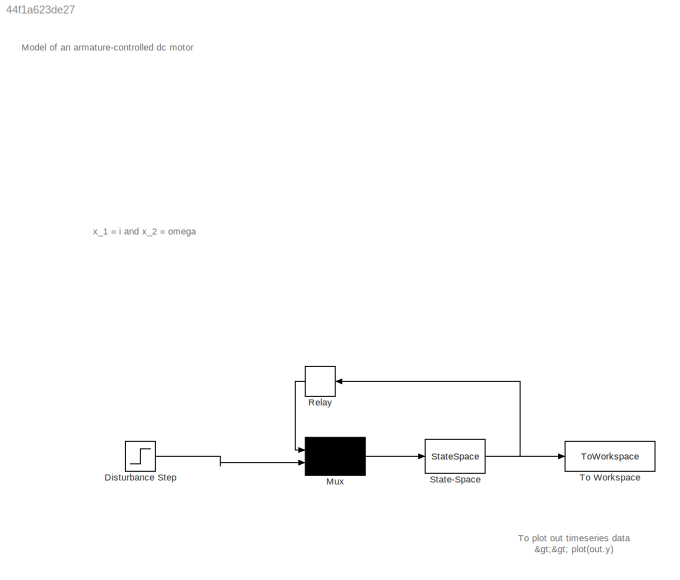
MODEL slx_44f1a623de27
KIND model
CONFIG AbsTol = auto
CONFIG EnableMultiTasking = off
CONFIG FixedStep = auto
CONFIG MaxStep = auto
CONFIG MinStep = auto
CONFIG RelTol = 1e-3
CONFIG SampleTimeConstraint = Unconstrained
CONFIG SolverName = VariableStepAuto
CONFIG StartTime = 0.0
CONFIG StopTime = .1
BLOCK [Step] Disturbance Step
  After = 3
  SampleTime = 0
  Time = .05
BLOCK [Mux] Mux
  DisplayOption = signals
  Inputs = 2
BLOCK [Relay] Relay
  OffOutputValue = 100
  OffSwitchValue = 250
  OnOutputValue = 0
  OnSwitchValue = 350
BLOCK [StateSpace] State-Space
  A = [-300,-20;666.7,-166.7]
  B = [500,0; 0,-16667]
  C = [0,1]
  D = [0,0]
  InitialCondition = 0
BLOCK [ToWorkspace] To Workspace
  FixptAsFi = on
  MaxDataPoints = inf
  SampleTime = -1
  SaveFormat = Timeseries
  VariableName = y
ANNOTATION (root): Model of an armature-controlled dc motor
ANNOTATION (root): x_1 = i and x_2 = omega
ANNOTATION (root): To plot out timeseries data >> plot(out.y)
LINE Disturbance Step:1 -> Mux:2
LINE Mux:1 -> State-Space:1
LINE Relay:1 -> Mux:1
NET State-Space:1 -> Relay:1, To Workspace:1
note: NET lines group one-source signal fan-out (src -> all destinations, sorted); 1:1 wires keep LINE
